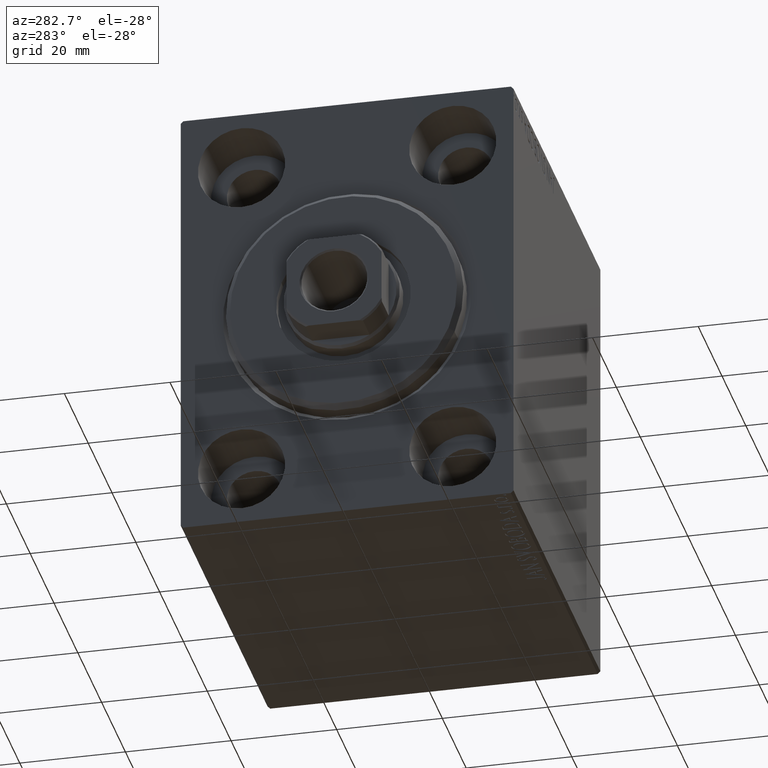
[diagram: clean part render]
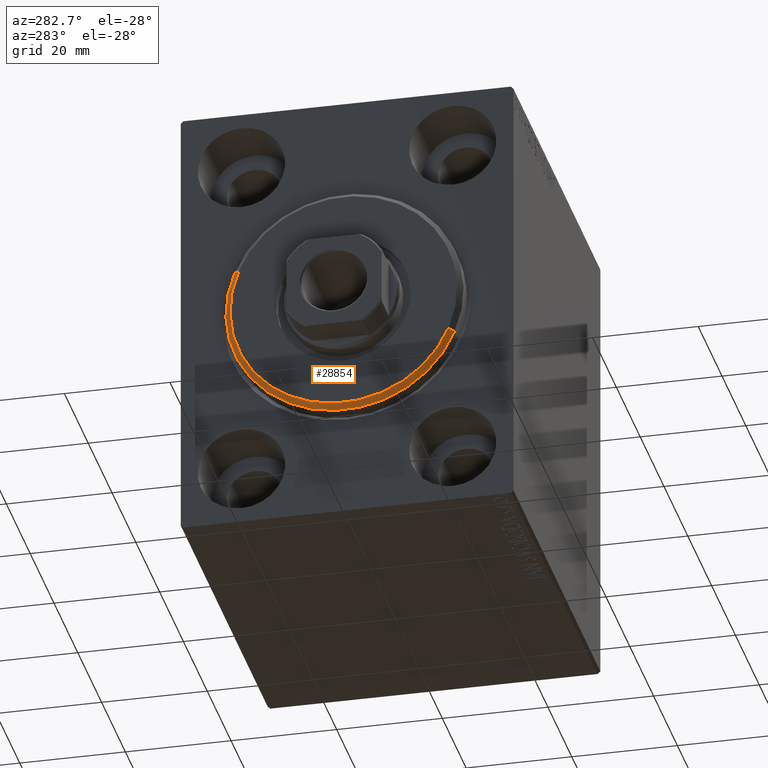
[diagram: same view with one face highlighted and labeled with its STEP entity id]
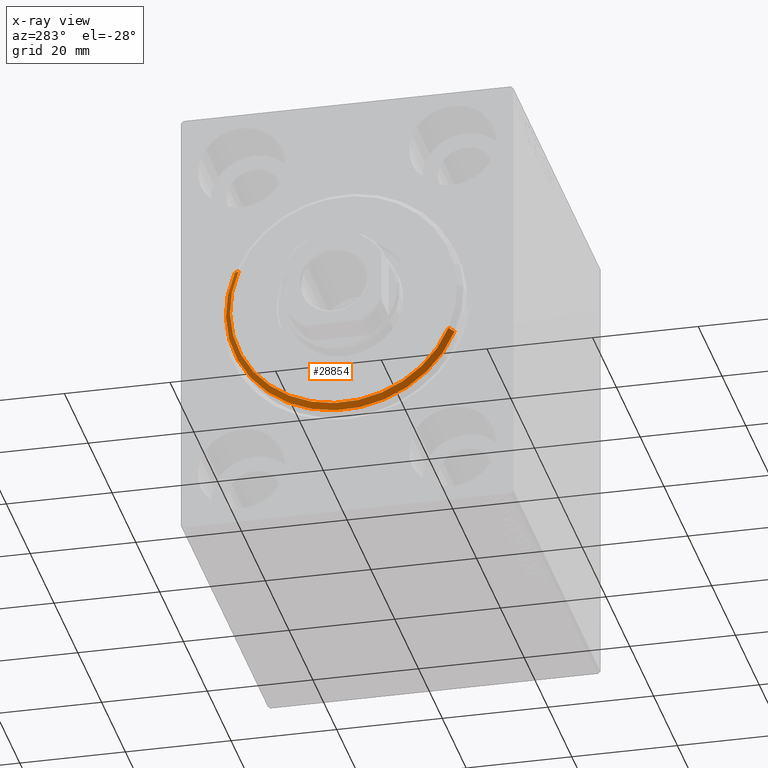
[diagram: x-ray of the same camera — body ghosted, the highlighted face saturated]
A machine part, auxiliary view. The second image highlights one B-rep face of the part: STEP entity #28854.
The next image is the same camera in x-ray: the body ghosted, the highlighted face saturated — about 0% of this face is hidden behind the body in this view.
In plain terms, the highlighted conical surface has half-angle 45 deg.
Its self-contained STEP definition (entity closure, byte-faithful):
#3667 = DIRECTION ( 'NONE',  ( 1.000000000000000000, -0.000000000000000000, 0.000000000000000000 ) ) ;
#4316 = EDGE_CURVE ( 'NONE', #23683, #8136, #24238, .T. ) ;
#4321 = DIRECTION ( 'NONE',  ( 0.000000000000000000, 0.000000000000000000, -1.000000000000000000 ) ) ;
#6331 = CARTESIAN_POINT ( 'NONE',  ( 3.000000000000000000, 0.000000000000000000, 0.000000000000000000 ) ) ;
#6554 = DIRECTION ( 'NONE',  ( -1.000000000000000000, 0.000000000000000000, 0.000000000000000000 ) ) ;
#6886 = CARTESIAN_POINT ( 'NONE',  ( 3.000000000000000000, 2.694222958124177598E-15, -21.50000000000000355 ) ) ;
#7245 = EDGE_CURVE ( 'NONE', #28181, #8136, #8463, .T. ) ;
#7284 = EDGE_LOOP ( 'NONE', ( #22072, #25740, #13446, #35809 ) ) ;
#8122 = DIRECTION ( 'NONE',  ( -0.7071067811865512365, 8.659560562354888485E-17, -0.7071067811865439090 ) ) ;
#8136 = VERTEX_POINT ( 'NONE', #23135 ) ;
#8463 = CIRCLE ( 'NONE', #11988, 22.50000000000000355 ) ;
#9351 = EDGE_CURVE ( 'NONE', #23683, #38745, #19090, .T. ) ;
#10831 = CARTESIAN_POINT ( 'NONE',  ( 3.000000000000000000, 0.000000000000000000, 21.50000000000000355 ) ) ;
#10990 = CONICAL_SURFACE ( 'NONE', #13103, 21.50000000000000355, 0.7853981633974431720 ) ;
#10993 = CARTESIAN_POINT ( 'NONE',  ( 3.000000000000000000, 2.632990618166810024E-15, -21.50000000000000355 ) ) ;
#11988 = AXIS2_PLACEMENT_3D ( 'NONE', #28851, #31743, #15598 ) ;
#12438 = VECTOR ( 'NONE', #33492, 1000.000000000000000 ) ;
#13103 = AXIS2_PLACEMENT_3D ( 'NONE', #6331, #6554, #16264 ) ;
#13446 = ORIENTED_EDGE ( 'NONE', *, *, #7245, .F. ) ;
#14022 = LINE ( 'NONE', #37698, #12438 ) ;
#15598 = DIRECTION ( 'NONE',  ( 0.000000000000000000, 0.000000000000000000, -1.000000000000000000 ) ) ;
#16264 = DIRECTION ( 'NONE',  ( 0.000000000000000000, 0.000000000000000000, 1.000000000000000000 ) ) ;
#16914 = FACE_OUTER_BOUND ( 'NONE', #7284, .T. ) ;
#19090 = CIRCLE ( 'NONE', #39619, 21.50000000000000355 ) ;
#22072 = ORIENTED_EDGE ( 'NONE', *, *, #9351, .F. ) ;
#23135 = CARTESIAN_POINT ( 'NONE',  ( 1.999999999999992228, 2.755455298081545172E-15, -22.50000000000000355 ) ) ;
#23683 = VERTEX_POINT ( 'NONE', #6886 ) ;
#24238 = LINE ( 'NONE', #10993, #33784 ) ;
#24397 = CARTESIAN_POINT ( 'NONE',  ( 1.999999999999992228, 0.000000000000000000, 22.50000000000000355 ) ) ;
#25740 = ORIENTED_EDGE ( 'NONE', *, *, #4316, .T. ) ;
#28181 = VERTEX_POINT ( 'NONE', #24397 ) ;
#28851 = CARTESIAN_POINT ( 'NONE',  ( 1.999999999999992228, 0.000000000000000000, 0.000000000000000000 ) ) ;
#28854 = ADVANCED_FACE ( 'NONE', ( #16914 ), #10990, .T. ) ;
#30050 = EDGE_CURVE ( 'NONE', #38745, #28181, #14022, .T. ) ;
#31743 = DIRECTION ( 'NONE',  ( -1.000000000000000000, 0.000000000000000000, 0.000000000000000000 ) ) ;
#33492 = DIRECTION ( 'NONE',  ( -0.7071067811865512365, 0.000000000000000000, 0.7071067811865439090 ) ) ;
#33784 = VECTOR ( 'NONE', #8122, 1000.000000000000000 ) ;
#34376 = CARTESIAN_POINT ( 'NONE',  ( 3.000000000000000000, 0.000000000000000000, 0.000000000000000000 ) ) ;
#35809 = ORIENTED_EDGE ( 'NONE', *, *, #30050, .F. ) ;
#37698 = CARTESIAN_POINT ( 'NONE',  ( 3.000000000000000000, 0.000000000000000000, 21.50000000000000355 ) ) ;
#38745 = VERTEX_POINT ( 'NONE', #10831 ) ;
#39619 = AXIS2_PLACEMENT_3D ( 'NONE', #34376, #3667, #4321 ) ;